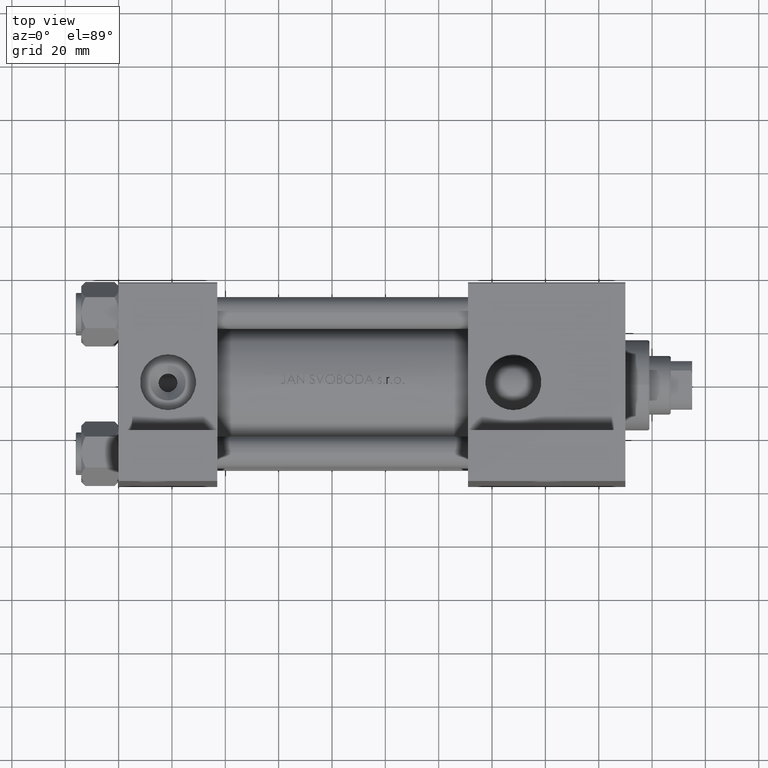
[diagram: clean part render]
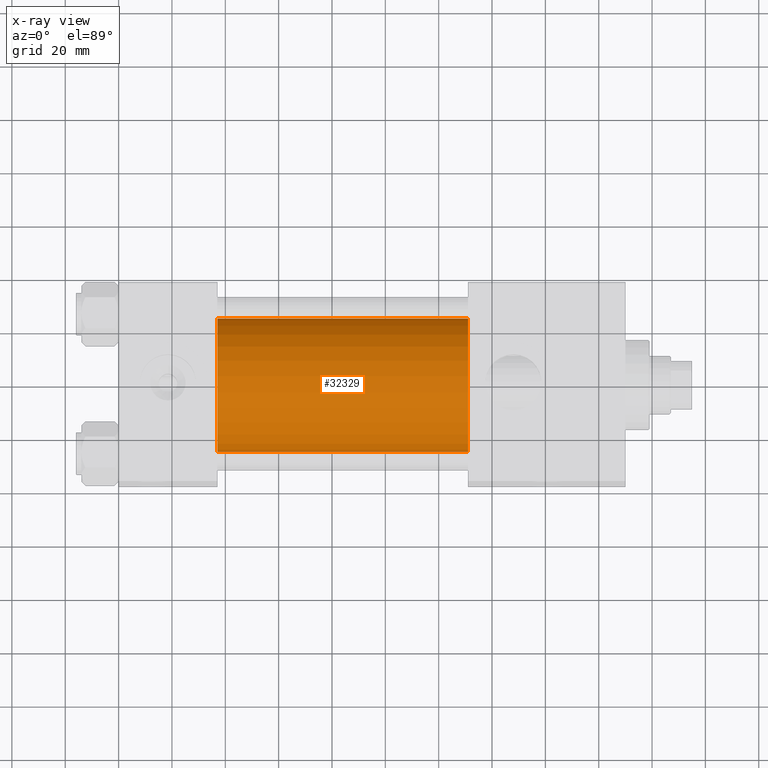
[diagram: x-ray — body ghosted, one internal face saturated and labeled with its STEP entity id]
A machine part, top view, then the same camera in x-ray: the body is ghosted and one INTERNAL B-rep face — a face not visible from any outside direction — is saturated and labeled: STEP entity #32329.
In plain terms, the highlighted cylindrical surface (partial cylindrical patch) has radius 25 mm, axis along (-1, -0, 0).
Its self-contained STEP definition (entity closure, byte-faithful):
#351 = DIRECTION ( 'NONE',  ( -1.000000000000000000, -0.000000000000000000, -0.000000000000000000 ) ) ;
#2760 = VECTOR ( 'NONE', #351, 1000.000000000000000 ) ;
#3283 = ORIENTED_EDGE ( 'NONE', *, *, #20706, .F. ) ;
#3845 = CARTESIAN_POINT ( 'NONE',  ( 131.0000000000000000, 3.061616997868383043E-15, -25.50000000000000355 ) ) ;
#5145 = CYLINDRICAL_SURFACE ( 'NONE', #21117, 25.00000000000000000 ) ;
#5892 = DIRECTION ( 'NONE',  ( -1.000000000000000000, -0.000000000000000000, -0.000000000000000000 ) ) ;
#7920 = CARTESIAN_POINT ( 'NONE',  ( 37.00000000000000000, 0.000000000000000000, 24.50000000000000000 ) ) ;
#8306 = DIRECTION ( 'NONE',  ( 1.000000000000000000, 0.000000000000000000, 0.000000000000000000 ) ) ;
#9247 = DIRECTION ( 'NONE',  ( 1.000000000000000000, 0.000000000000000000, 0.000000000000000000 ) ) ;
#9268 = CIRCLE ( 'NONE', #37143, 25.00000000000000000 ) ;
#10923 = VERTEX_POINT ( 'NONE', #11370 ) ;
#11370 = CARTESIAN_POINT ( 'NONE',  ( 131.0000000000000000, 3.061616997868383043E-15, -25.50000000000000355 ) ) ;
#11759 = CARTESIAN_POINT ( 'NONE',  ( 131.0000000000000000, 0.000000000000000000, -0.5000000000000004441 ) ) ;
#12301 = DIRECTION ( 'NONE',  ( 0.000000000000000000, 0.000000000000000000, -1.000000000000000000 ) ) ;
#12616 = EDGE_LOOP ( 'NONE', ( #19759, #30435, #31038, #3283 ) ) ;
#13573 = CARTESIAN_POINT ( 'NONE',  ( 131.0000000000000000, 0.000000000000000000, 24.50000000000000000 ) ) ;
#15297 = LINE ( 'NONE', #3845, #2760 ) ;
#19158 = CARTESIAN_POINT ( 'NONE',  ( 37.00000000000000000, 3.061616997868383043E-15, -25.50000000000000355 ) ) ;
#19759 = ORIENTED_EDGE ( 'NONE', *, *, #35918, .T. ) ;
#20706 = EDGE_CURVE ( 'NONE', #45753, #47645, #41190, .T. ) ;
#21117 = AXIS2_PLACEMENT_3D ( 'NONE', #24337, #5892, #21341 ) ;
#21341 = DIRECTION ( 'NONE',  ( 0.000000000000000000, 0.000000000000000000, 1.000000000000000000 ) ) ;
#22419 = VECTOR ( 'NONE', #34444, 1000.000000000000000 ) ;
#24337 = CARTESIAN_POINT ( 'NONE',  ( 131.0000000000000000, 0.000000000000000000, -0.5000000000000004441 ) ) ;
#26483 = EDGE_CURVE ( 'NONE', #10923, #31275, #15297, .T. ) ;
#30435 = ORIENTED_EDGE ( 'NONE', *, *, #26483, .T. ) ;
#31038 = ORIENTED_EDGE ( 'NONE', *, *, #35491, .F. ) ;
#31275 = VERTEX_POINT ( 'NONE', #19158 ) ;
#32329 = ADVANCED_FACE ( 'NONE', ( #39773 ), #5145, .F. ) ;
#33960 = CIRCLE ( 'NONE', #36353, 25.00000000000000000 ) ;
#34444 = DIRECTION ( 'NONE',  ( -1.000000000000000000, -0.000000000000000000, -0.000000000000000000 ) ) ;
#35491 = EDGE_CURVE ( 'NONE', #47645, #31275, #33960, .T. ) ;
#35918 = EDGE_CURVE ( 'NONE', #45753, #10923, #9268, .T. ) ;
#36353 = AXIS2_PLACEMENT_3D ( 'NONE', #41941, #8306, #12301 ) ;
#37143 = AXIS2_PLACEMENT_3D ( 'NONE', #11759, #9247, #39387 ) ;
#39387 = DIRECTION ( 'NONE',  ( 0.000000000000000000, 0.000000000000000000, -1.000000000000000000 ) ) ;
#39773 = FACE_OUTER_BOUND ( 'NONE', #12616, .T. ) ;
#41190 = LINE ( 'NONE', #42150, #22419 ) ;
#41941 = CARTESIAN_POINT ( 'NONE',  ( 37.00000000000000000, 0.000000000000000000, -0.5000000000000004441 ) ) ;
#42150 = CARTESIAN_POINT ( 'NONE',  ( 131.0000000000000000, 0.000000000000000000, 24.50000000000000000 ) ) ;
#45753 = VERTEX_POINT ( 'NONE', #13573 ) ;
#47645 = VERTEX_POINT ( 'NONE', #7920 ) ;